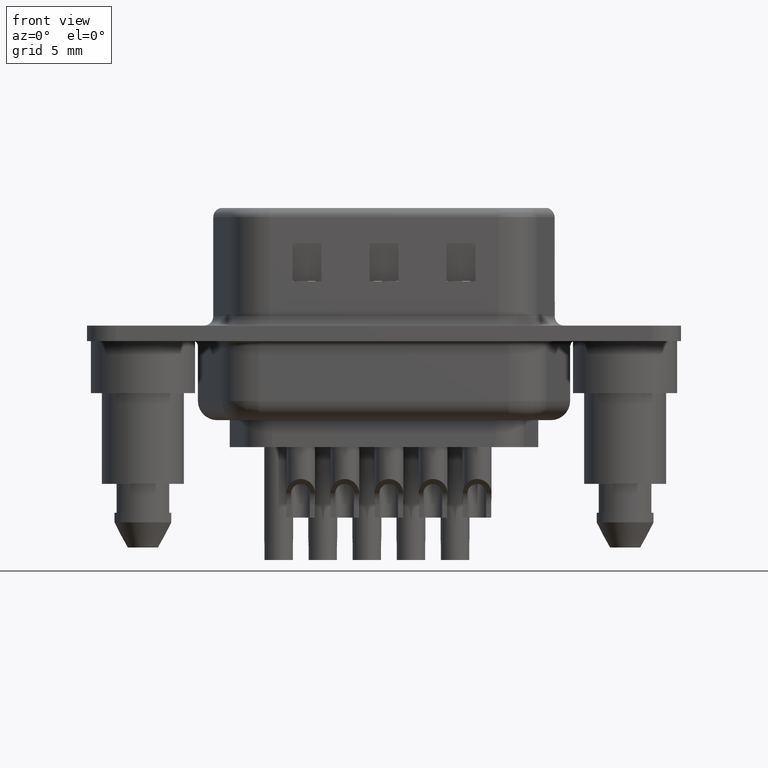
[diagram: clean part render]
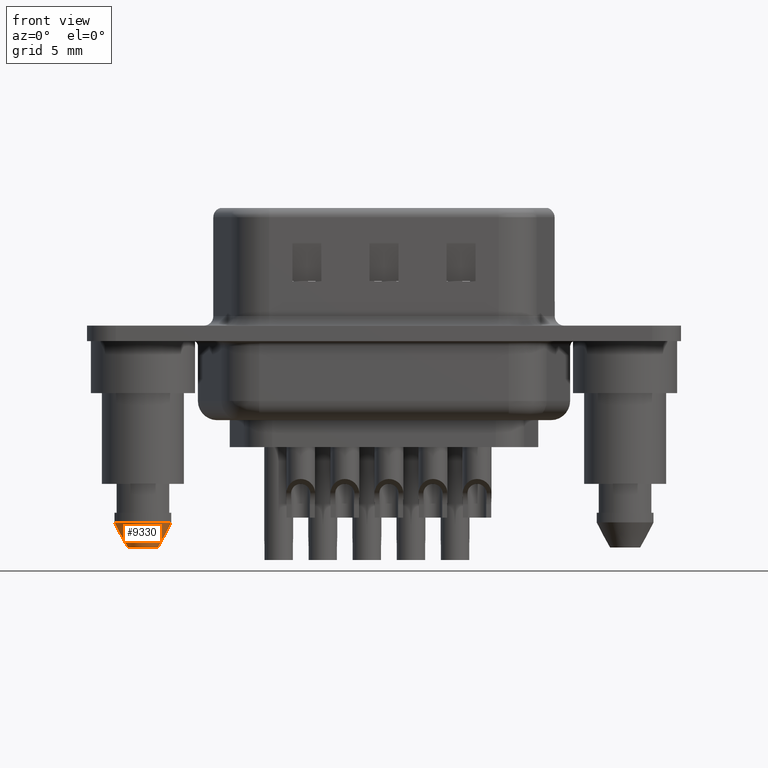
[diagram: same view with one face highlighted and labeled with its STEP entity id]
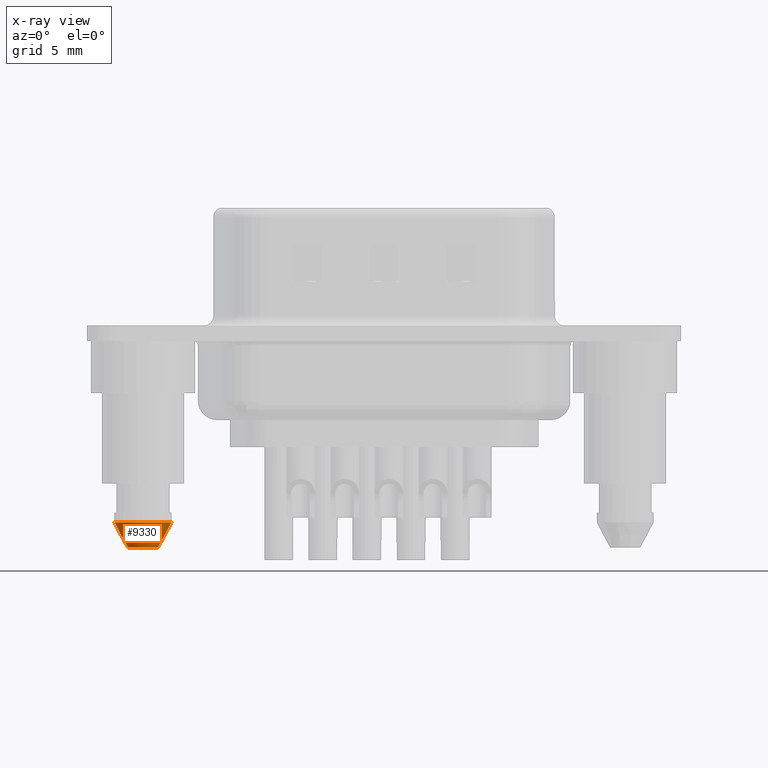
[diagram: x-ray of the same camera — body ghosted, the highlighted face saturated]
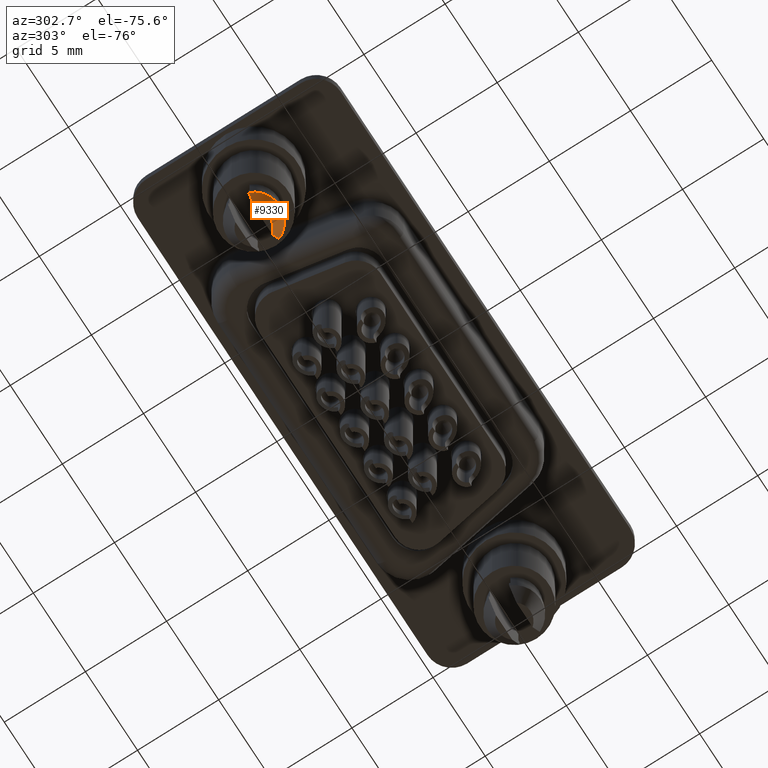
[diagram: same view with one face highlighted and labeled with its STEP entity id]
A machine part, front view. The second image highlights one B-rep face of the part: STEP entity #9330.
The next image is the same camera in x-ray: the body ghosted, the highlighted face saturated — about 0% of this face is hidden behind the body in this view.
A second angle (auxiliary view) of the same face is appended — the face is thin or edge-on in the first view.
In plain terms, the highlighted conical surface has half-angle 24.775 deg.
Its self-contained STEP definition (entity closure, byte-faithful):
#307 = ORIENTED_EDGE ( 'NONE', *, *, #10922, .F. ) ;
#478 = CARTESIAN_POINT ( 'NONE',  ( -0.7806247497997997900, -0.6249999999999998900, -11.09999999999999800 ) ) ;
#1018 = CONICAL_SURFACE ( 'NONE', #1703, 1.000000000000000000, 0.4324077755705386700 ) ;
#1703 = AXIS2_PLACEMENT_3D ( 'NONE', #7759, #6372, #4986 ) ;
#1810 = DIRECTION ( 'NONE',  ( -0.0000000000000000000, -0.0000000000000000000, 1.000000000000000000 ) ) ;
#2102 = EDGE_CURVE ( 'NONE', #17241, #14731, #15796, .T. ) ;
#2302 = AXIS2_PLACEMENT_3D ( 'NONE', #10026, #1810, #11412 ) ;
#2487 = CARTESIAN_POINT ( 'NONE',  ( 0.7806247497997997900, -0.6250000000000001100, -11.09999999999999800 ) ) ;
#2576 = CARTESIAN_POINT ( 'NONE',  ( 1.251403153814231000, -0.6250000000000000000, -10.23829085660901800 ) ) ;
#2737 = ORIENTED_EDGE ( 'NONE', *, *, #15316, .T. ) ;
#2975 = EDGE_CURVE ( 'NONE', #17644, #17241, #3501, .T. ) ;
#2981 = CARTESIAN_POINT ( 'NONE',  ( 1.472879832165543600, -0.6250000000000001100, -9.800000000000000700 ) ) ;
#3501 = CIRCLE ( 'NONE', #5165, 1.000000000000000000 ) ;
#3980 = CARTESIAN_POINT ( 'NONE',  ( 1.022623937401878800, -0.6250000000000001100, -10.67267848509373000 ) ) ;
#4378 = CIRCLE ( 'NONE', #2302, 1.600000000000000100 ) ;
#4986 = DIRECTION ( 'NONE',  ( 1.000000000000000000, 0.0000000000000000000, 0.0000000000000000000 ) ) ;
#5091 = FACE_OUTER_BOUND ( 'NONE', #5231, .T. ) ;
#5165 = AXIS2_PLACEMENT_3D ( 'NONE', #8050, #7541, #7341 ) ;
#5231 = EDGE_LOOP ( 'NONE', ( #307, #2737, #16566, #16026 ) ) ;
#5398 = CARTESIAN_POINT ( 'NONE',  ( -1.472879832165543600, -0.6249999999999998900, -9.800000000000000700 ) ) ;
#5973 = CARTESIAN_POINT ( 'NONE',  ( -1.472879832165543600, -0.6249999999999998900, -9.800000000000000700 ) ) ;
#6372 = DIRECTION ( 'NONE',  ( -0.0000000000000000000, -0.0000000000000000000, 1.000000000000000000 ) ) ;
#7341 = DIRECTION ( 'NONE',  ( 1.000000000000000000, 0.0000000000000000000, 0.0000000000000000000 ) ) ;
#7359 = CARTESIAN_POINT ( 'NONE',  ( -1.251515579153868600, -0.6249999999999998900, -10.23807209210264600 ) ) ;
#7541 = DIRECTION ( 'NONE',  ( -0.0000000000000000000, -0.0000000000000000000, 1.000000000000000000 ) ) ;
#7759 = CARTESIAN_POINT ( 'NONE',  ( 0.0000000000000000000, 0.0000000000000000000, -11.09999999999999800 ) ) ;
#8050 = CARTESIAN_POINT ( 'NONE',  ( 0.0000000000000000000, 0.0000000000000000000, -11.09999999999999800 ) ) ;
#8719 = CARTESIAN_POINT ( 'NONE',  ( -0.9056515090168731900, -0.6249999999999998900, -10.88853553763046900 ) ) ;
#9330 = ADVANCED_FACE ( 'NONE', ( #5091 ), #1018, .T. ) ;
#9534 = VERTEX_POINT ( 'NONE', #5398 ) ;
#10026 = CARTESIAN_POINT ( 'NONE',  ( 0.0000000000000000000, 0.0000000000000000000, -9.800000000000000700 ) ) ;
#10922 = EDGE_CURVE ( 'NONE', #9534, #14731, #4378, .T. ) ;
#11412 = DIRECTION ( 'NONE',  ( 1.000000000000000000, 0.0000000000000000000, 0.0000000000000000000 ) ) ;
#11935 = CARTESIAN_POINT ( 'NONE',  ( 0.9056711703443840500, -0.6250000000000000000, -10.88850228337288300 ) ) ;
#13302 = B_SPLINE_CURVE_WITH_KNOTS ( 'NONE', 3,
 ( #5973, #15454, #7359, #16853, #8719, #478 ),
 .UNSPECIFIED., .F., .F.,
 ( 4, 2, 4 ),
 ( 0.002303733088104810900, 0.003039964299588525000, 0.003776195511072239200 ),
 .UNSPECIFIED. ) ;
#13323 = CARTESIAN_POINT ( 'NONE',  ( 0.7806247497997997900, -0.6250000000000001100, -11.09999999999999800 ) ) ;
#14731 = VERTEX_POINT ( 'NONE', #2981 ) ;
#15316 = EDGE_CURVE ( 'NONE', #9534, #17644, #13302, .T. ) ;
#15454 = CARTESIAN_POINT ( 'NONE',  ( -1.362888077589042400, -0.6249999999999998900, -10.01938127929823400 ) ) ;
#15647 = CARTESIAN_POINT ( 'NONE',  ( -0.7806247497997997900, -0.6249999999999998900, -11.09999999999999800 ) ) ;
#15796 = B_SPLINE_CURVE_WITH_KNOTS ( 'NONE', 3,
 ( #13323, #11935, #3980, #2576, #17447, #17386 ),
 .UNSPECIFIED., .F., .F.,
 ( 4, 2, 4 ),
 ( 0.006086547456445027100, 0.006816461140767156000, 0.007546374825089284900 ),
 .UNSPECIFIED. ) ;
#16026 = ORIENTED_EDGE ( 'NONE', *, *, #2102, .T. ) ;
#16566 = ORIENTED_EDGE ( 'NONE', *, *, #2975, .T. ) ;
#16853 = CARTESIAN_POINT ( 'NONE',  ( -1.022750586988867600, -0.6249999999999996700, -10.67244330776626900 ) ) ;
#17241 = VERTEX_POINT ( 'NONE', #2487 ) ;
#17386 = CARTESIAN_POINT ( 'NONE',  ( 1.472879832165543600, -0.6250000000000001100, -9.800000000000000700 ) ) ;
#17447 = CARTESIAN_POINT ( 'NONE',  ( 1.362823546593842500, -0.6250000000000001100, -10.01950998796678000 ) ) ;
#17644 = VERTEX_POINT ( 'NONE', #15647 ) ;